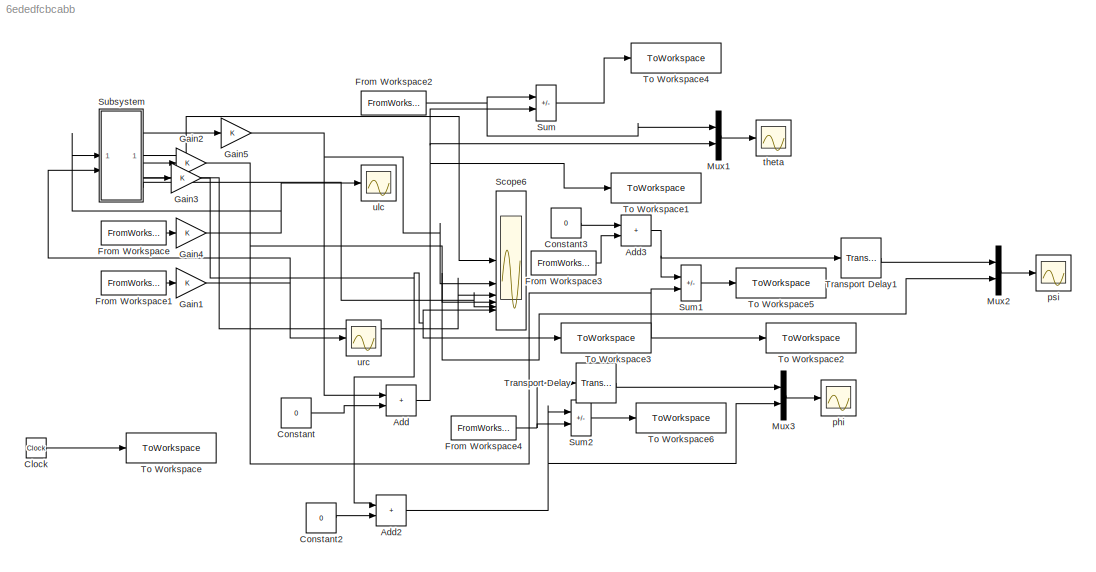
MODEL slx_6ededfcbcabb
KIND model
CONFIG AbsTol = auto
CONFIG EnableMultiTasking = off
CONFIG FixedStep = auto
CONFIG MaxStep = auto
CONFIG MinStep = auto
CONFIG RelTol = 1e-3
CONFIG SampleTimeConstraint = Unconstrained
CONFIG SolverName = VariableStepAuto
CONFIG StartTime = 0.0
CONFIG StopTime = 60
BLOCK [Sum] Add
  IconShape = rectangular
BLOCK [Sum] Add2
  IconShape = rectangular
BLOCK [Sum] Add3
  IconShape = rectangular
BLOCK [Clock] Clock
BLOCK [Constant] Constant
  Value = 0
BLOCK [Constant] Constant2
  Value = 0
BLOCK [Constant] Constant3
  Value = 0
BLOCK [FromWorkspace] From Workspace
  SampleTime = Ts
  VariableName = [t_exp urc]
BLOCK [FromWorkspace] From Workspace1
  SampleTime = Ts
  VariableName = [t_exp ulc]
BLOCK [FromWorkspace] From Workspace2
  SampleTime = Ts
  VariableName = [t_exp theta]
BLOCK [FromWorkspace] From Workspace3
  SampleTime = Ts
  VariableName = [t_exp psi]
BLOCK [FromWorkspace] From Workspace4
  SampleTime = Ts
  VariableName = [t_exp phi]
BLOCK [Gain] Gain1
BLOCK [Gain] Gain2
BLOCK [Gain] Gain3
BLOCK [Gain] Gain4
BLOCK [Gain] Gain5
BLOCK [Mux] Mux1
  DisplayOption = bar
  Inputs = 2
BLOCK [Mux] Mux2
  DisplayOption = bar
  Inputs = 2
BLOCK [Mux] Mux3
  DisplayOption = bar
  Inputs = 2
BLOCK [Scope] Scope6
  Floating = off
  NumInputPorts = 6
  ScopeSpecificationString = Simulink.scopes.TimeScopeBlockCfg('CurrentConfiguration', extmgr.ConfigurationSet(extmgr.Configuration('Core','General UI',true),extmgr.Configuration('Core','Source UI',true),extmgr.Configuration('Sources','WiredSimulink',true,'DataLoggingVariableName','ScopeData4'),extmgr.Configuration('Visuals','Time Domain',true,'SerializedDisplays',{struct('MinYLimReal','-14.69797','MaxYLimReal','20.64372','YL...<+1512ch>
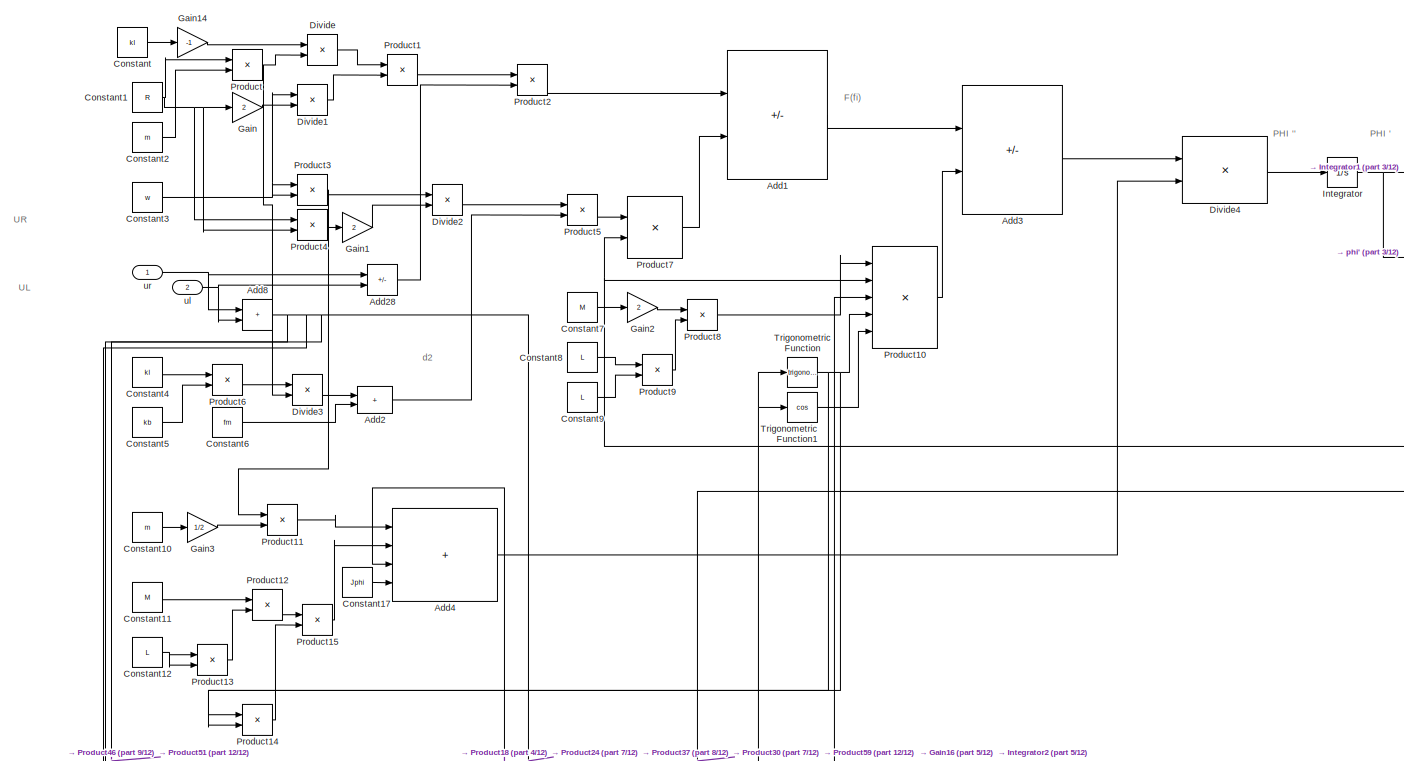
[diagram: Subsystem - part 1/12, top left region]
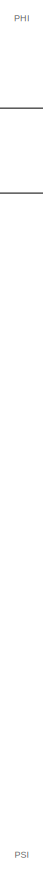
[diagram: Subsystem - part 2/12, top right region]
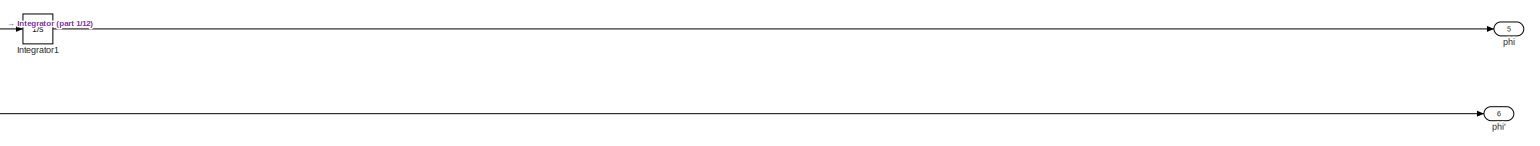
[diagram: Subsystem - part 3/12, top right region]
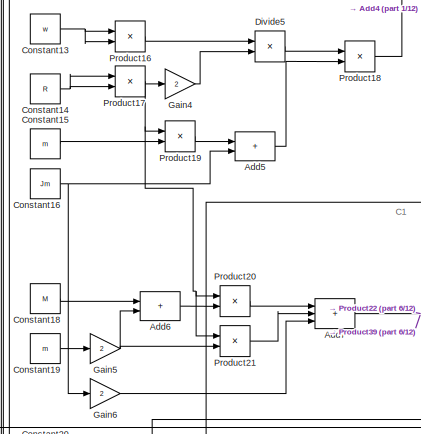
[diagram: Subsystem - part 4/12, top left region]
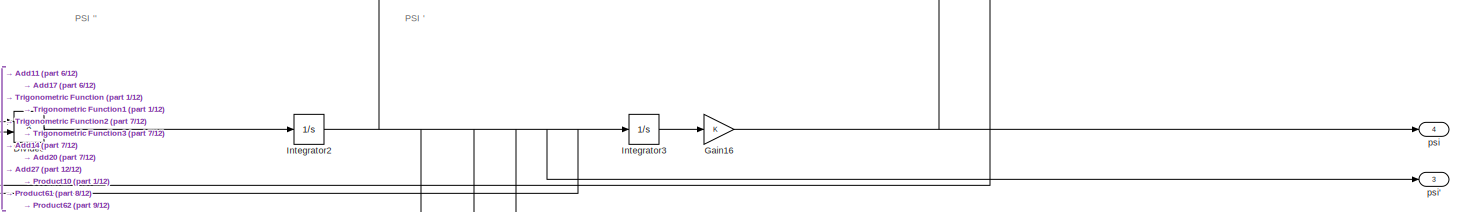
[diagram: Subsystem - part 5/12, top right region]
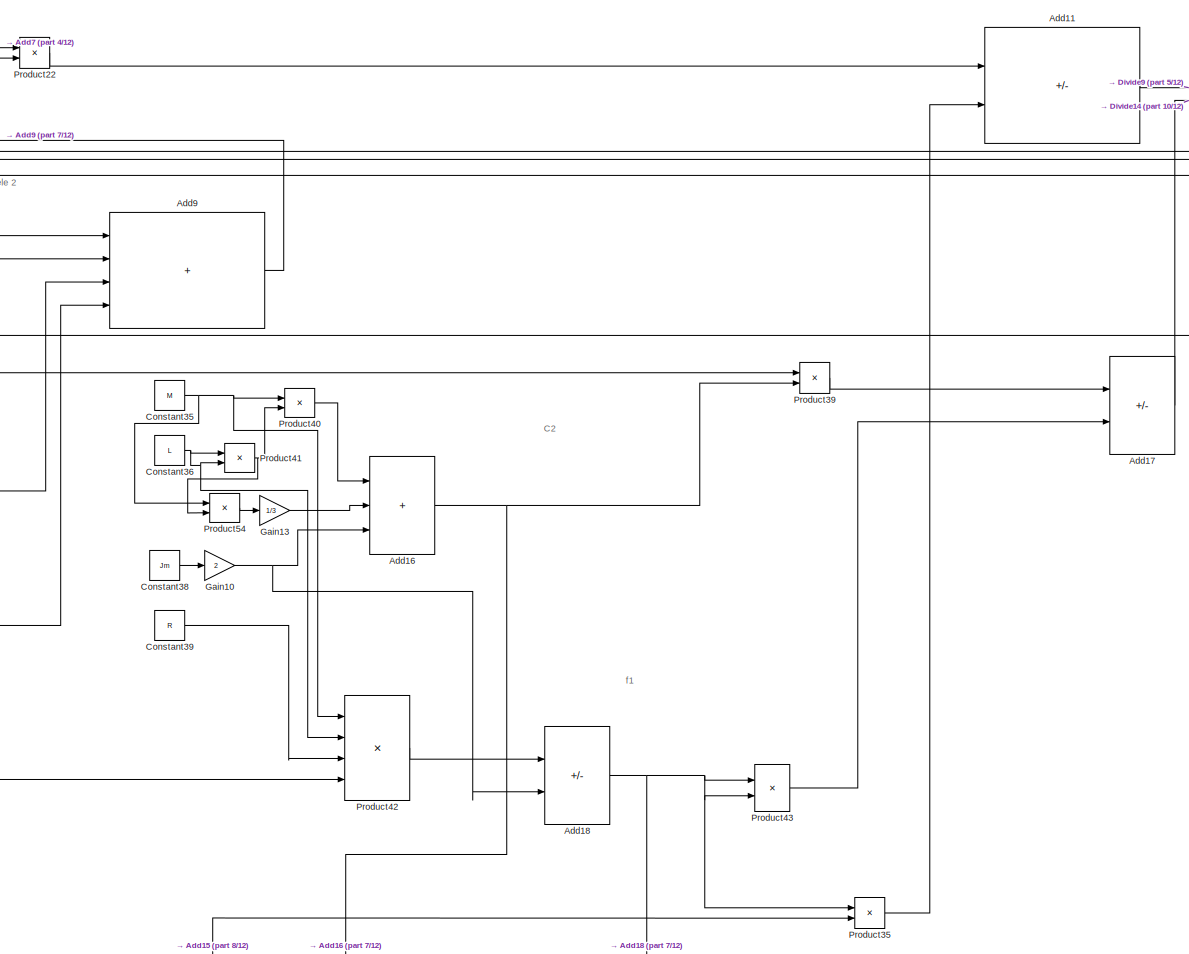
[diagram: Subsystem - part 6/12, middle left region]
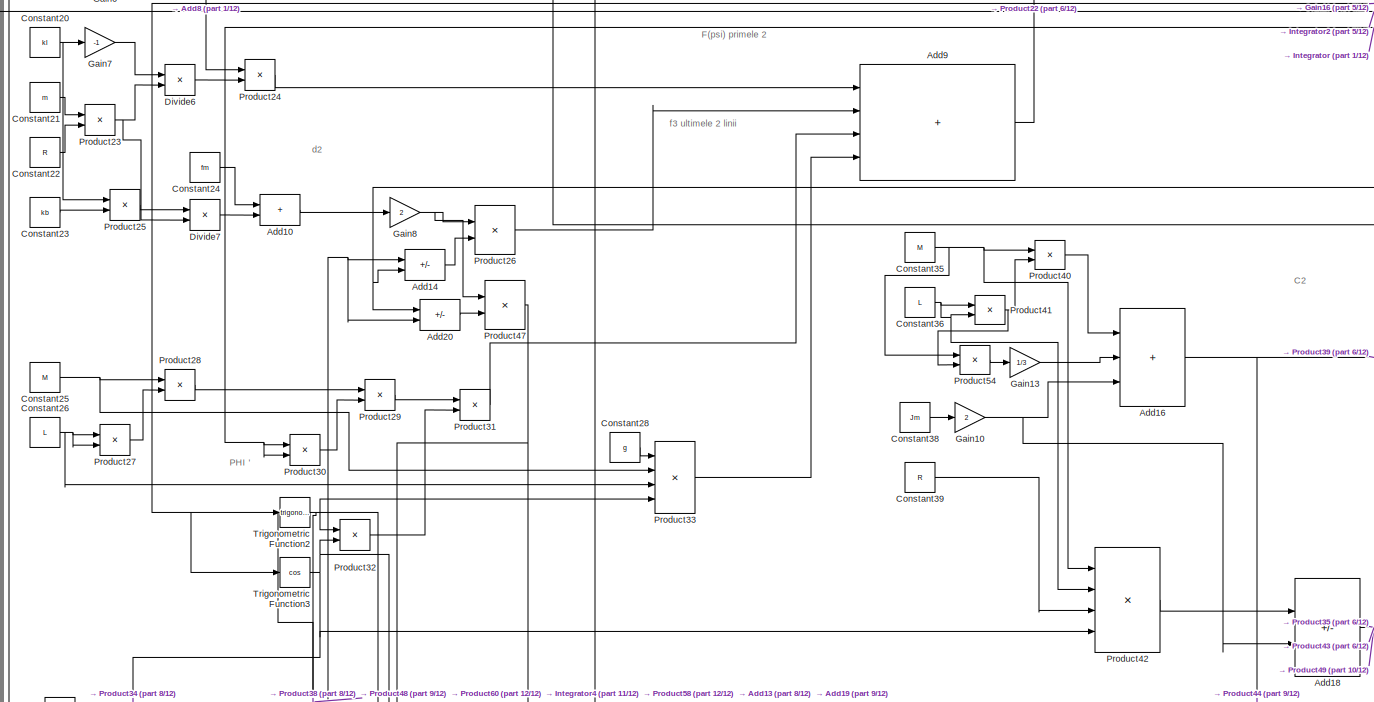
[diagram: Subsystem - part 7/12, middle left region]
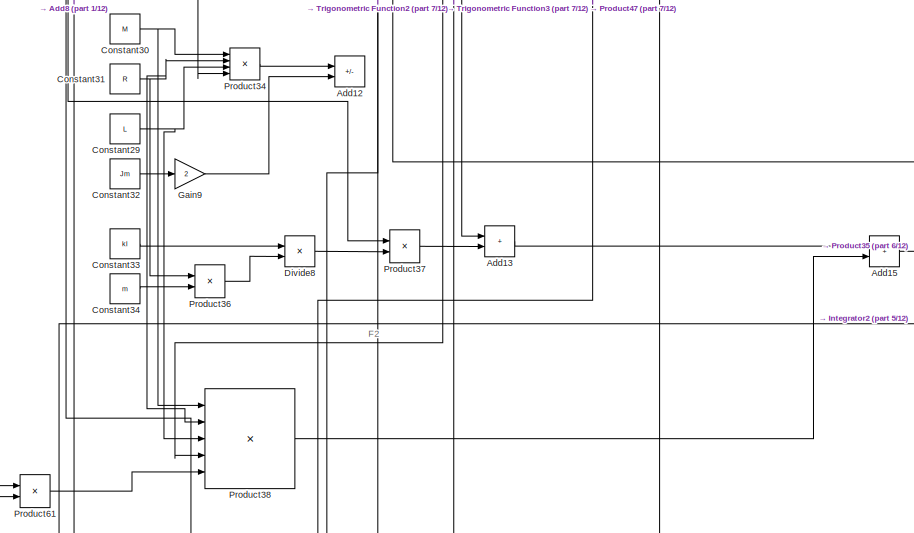
[diagram: Subsystem - part 8/12, middle left region]
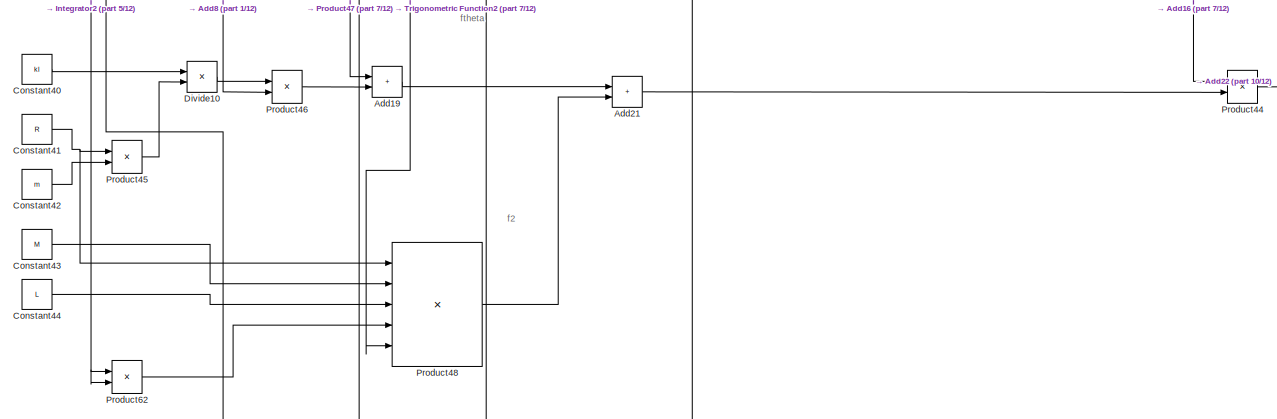
[diagram: Subsystem - part 9/12, bottom left region]
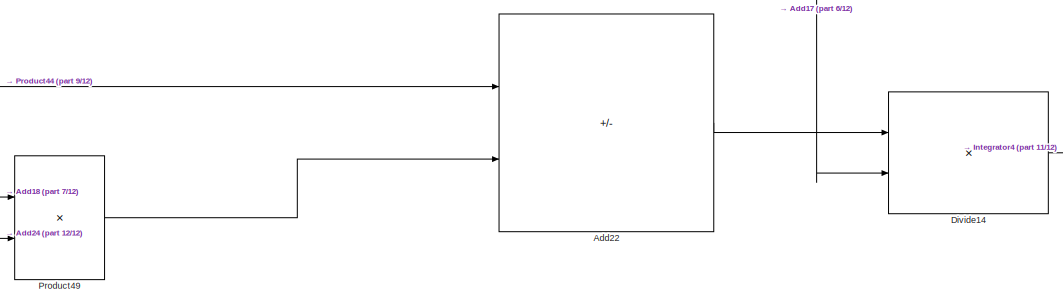
[diagram: Subsystem - part 10/12, bottom right region]
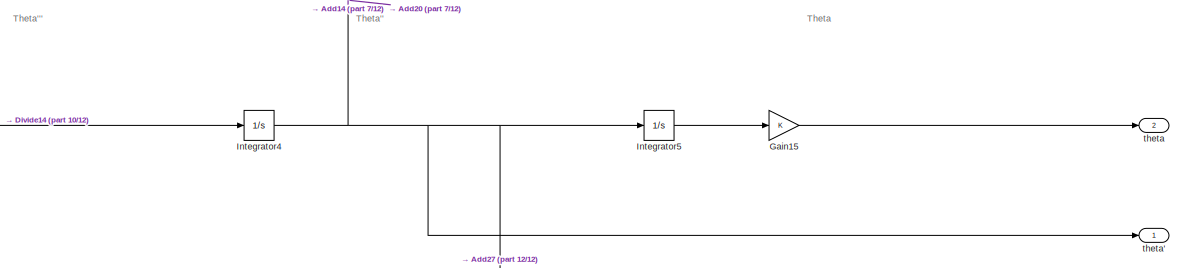
[diagram: Subsystem - part 11/12, bottom right region]
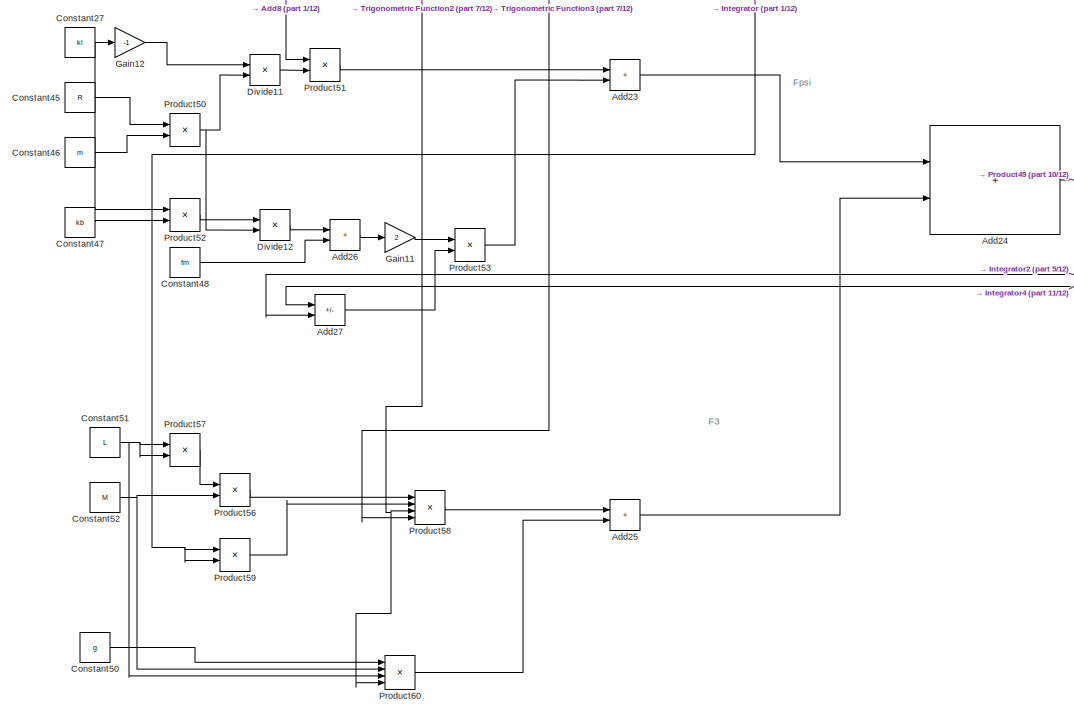
[diagram: Subsystem - part 12/12, bottom left region]
BLOCK [SubSystem] Subsystem
BLOCK [Sum] Subsystem/Add1
  IconShape = rectangular
  Inputs = +-
BLOCK [Sum] Subsystem/Add10
  IconShape = rectangular
BLOCK [Sum] Subsystem/Add11
  IconShape = rectangular
  Inputs = +-
BLOCK [Sum] Subsystem/Add12
  IconShape = rectangular
  Inputs = +-
BLOCK [Sum] Subsystem/Add13
  IconShape = rectangular
BLOCK [Sum] Subsystem/Add14
  IconShape = rectangular
  Inputs = +-
BLOCK [Sum] Subsystem/Add15
  IconShape = rectangular
BLOCK [Sum] Subsystem/Add16
  IconShape = rectangular
  Inputs = +++
BLOCK [Sum] Subsystem/Add17
  IconShape = rectangular
  Inputs = +-
BLOCK [Sum] Subsystem/Add18
  IconShape = rectangular
  Inputs = +-
BLOCK [Sum] Subsystem/Add19
  IconShape = rectangular
BLOCK [Sum] Subsystem/Add2
  IconShape = rectangular
BLOCK [Sum] Subsystem/Add20
  IconShape = rectangular
  Inputs = +-
BLOCK [Sum] Subsystem/Add21
  IconShape = rectangular
BLOCK [Sum] Subsystem/Add22
  IconShape = rectangular
  Inputs = +-
BLOCK [Sum] Subsystem/Add23
  IconShape = rectangular
BLOCK [Sum] Subsystem/Add24
  IconShape = rectangular
BLOCK [Sum] Subsystem/Add25
  IconShape = rectangular
BLOCK [Sum] Subsystem/Add26
  IconShape = rectangular
BLOCK [Sum] Subsystem/Add27
  IconShape = rectangular
  Inputs = +-
BLOCK [Sum] Subsystem/Add28
  IconShape = rectangular
  Inputs = +-
BLOCK [Sum] Subsystem/Add3
  IconShape = rectangular
  Inputs = +-
BLOCK [Sum] Subsystem/Add4
  IconShape = rectangular
  Inputs = ++++
BLOCK [Sum] Subsystem/Add5
  IconShape = rectangular
BLOCK [Sum] Subsystem/Add6
  IconShape = rectangular
BLOCK [Sum] Subsystem/Add7
  IconShape = rectangular
  Inputs = +++
BLOCK [Sum] Subsystem/Add8
  IconShape = rectangular
BLOCK [Sum] Subsystem/Add9
  IconShape = rectangular
  Inputs = ++++
BLOCK [Constant] Subsystem/Constant
  Value = kl
BLOCK [Constant] Subsystem/Constant1
  Value = R
BLOCK [Constant] Subsystem/Constant10
  Value = m
BLOCK [Constant] Subsystem/Constant11
  Value = M
BLOCK [Constant] Subsystem/Constant12
  Value = L
BLOCK [Constant] Subsystem/Constant13
  Value = w
BLOCK [Constant] Subsystem/Constant14
  Value = R
BLOCK [Constant] Subsystem/Constant15
  Value = m
BLOCK [Constant] Subsystem/Constant16
  Value = Jm
BLOCK [Constant] Subsystem/Constant17
  Value = Jphi
BLOCK [Constant] Subsystem/Constant18
  Value = M
BLOCK [Constant] Subsystem/Constant19
  Value = m
BLOCK [Constant] Subsystem/Constant2
  Value = m
BLOCK [Constant] Subsystem/Constant20
  Value = kl
BLOCK [Constant] Subsystem/Constant21
  Value = m
BLOCK [Constant] Subsystem/Constant22
  Value = R
BLOCK [Constant] Subsystem/Constant23
  Value = kb
BLOCK [Constant] Subsystem/Constant24
  Value = fm
BLOCK [Constant] Subsystem/Constant25
  Value = M
BLOCK [Constant] Subsystem/Constant26
  Value = L
BLOCK [Constant] Subsystem/Constant27
  Value = kl
BLOCK [Constant] Subsystem/Constant28
  Value = g
BLOCK [Constant] Subsystem/Constant29
  Value = L
BLOCK [Constant] Subsystem/Constant3
  Value = w
BLOCK [Constant] Subsystem/Constant30
  Value = M
BLOCK [Constant] Subsystem/Constant31
  Value = R
BLOCK [Constant] Subsystem/Constant32
  Value = Jm
BLOCK [Constant] Subsystem/Constant33
  Value = kl
BLOCK [Constant] Subsystem/Constant34
  Value = m
BLOCK [Constant] Subsystem/Constant35
  Value = M
BLOCK [Constant] Subsystem/Constant36
  Value = L
BLOCK [Constant] Subsystem/Constant38
  Value = Jm
BLOCK [Constant] Subsystem/Constant39
  Value = R
BLOCK [Constant] Subsystem/Constant4
  Value = kl
BLOCK [Constant] Subsystem/Constant40
  Value = kl
BLOCK [Constant] Subsystem/Constant41
  Value = R
BLOCK [Constant] Subsystem/Constant42
  Value = m
BLOCK [Constant] Subsystem/Constant43
  Value = M
BLOCK [Constant] Subsystem/Constant44
  Value = L
BLOCK [Constant] Subsystem/Constant45
  Value = R
BLOCK [Constant] Subsystem/Constant46
  Value = m
BLOCK [Constant] Subsystem/Constant47
  Value = kb
BLOCK [Constant] Subsystem/Constant48
  Value = fm
BLOCK [Constant] Subsystem/Constant5
  Value = kb
BLOCK [Constant] Subsystem/Constant50
  Value = g
BLOCK [Constant] Subsystem/Constant51
  Value = L
BLOCK [Constant] Subsystem/Constant52
  Value = M
BLOCK [Constant] Subsystem/Constant6
  Value = fm
BLOCK [Constant] Subsystem/Constant7
  Value = M
BLOCK [Constant] Subsystem/Constant8
  Value = L
BLOCK [Constant] Subsystem/Constant9
  Value = L
BLOCK [Product] Subsystem/Divide
  Inputs = */
BLOCK [Product] Subsystem/Divide1
  Inputs = */
BLOCK [Product] Subsystem/Divide10
  Inputs = */
BLOCK [Product] Subsystem/Divide11
  Inputs = */
BLOCK [Product] Subsystem/Divide12
  Inputs = */
BLOCK [Product] Subsystem/Divide14
  Inputs = */
BLOCK [Product] Subsystem/Divide2
  Inputs = */
BLOCK [Product] Subsystem/Divide3
  Inputs = */
BLOCK [Product] Subsystem/Divide4
  Inputs = */
BLOCK [Product] Subsystem/Divide5
  Inputs = */
BLOCK [Product] Subsystem/Divide6
  Inputs = */
BLOCK [Product] Subsystem/Divide7
  Inputs = */
BLOCK [Product] Subsystem/Divide8
  Inputs = */
BLOCK [Product] Subsystem/Divide9
  Inputs = */
BLOCK [Gain] Subsystem/Gain
  Gain = 2
BLOCK [Gain] Subsystem/Gain1
  Gain = 2
BLOCK [Gain] Subsystem/Gain10
  Gain = 2
BLOCK [Gain] Subsystem/Gain11
  Gain = 2
BLOCK [Gain] Subsystem/Gain12
  Gain = -1
BLOCK [Gain] Subsystem/Gain13
  Gain = 1/3
BLOCK [Gain] Subsystem/Gain14
  Gain = -1
BLOCK [Gain] Subsystem/Gain15
BLOCK [Gain] Subsystem/Gain16
BLOCK [Gain] Subsystem/Gain2
  Gain = 2
BLOCK [Gain] Subsystem/Gain3
  Gain = 1/2
BLOCK [Gain] Subsystem/Gain4
  Gain = 2
BLOCK [Gain] Subsystem/Gain5
  Gain = 2
BLOCK [Gain] Subsystem/Gain6
  Gain = 2
BLOCK [Gain] Subsystem/Gain7
  Gain = -1
BLOCK [Gain] Subsystem/Gain8
  Gain = 2
BLOCK [Gain] Subsystem/Gain9
  Gain = 2
BLOCK [Integrator] Subsystem/Integrator
BLOCK [Integrator] Subsystem/Integrator1
BLOCK [Integrator] Subsystem/Integrator2
BLOCK [Integrator] Subsystem/Integrator3
BLOCK [Integrator] Subsystem/Integrator4
BLOCK [Integrator] Subsystem/Integrator5
BLOCK [Product] Subsystem/Product
BLOCK [Product] Subsystem/Product1
BLOCK [Product] Subsystem/Product10
  Inputs = 5
BLOCK [Product] Subsystem/Product11
BLOCK [Product] Subsystem/Product12
BLOCK [Product] Subsystem/Product13
BLOCK [Product] Subsystem/Product14
BLOCK [Product] Subsystem/Product15
BLOCK [Product] Subsystem/Product16
BLOCK [Product] Subsystem/Product17
BLOCK [Product] Subsystem/Product18
BLOCK [Product] Subsystem/Product19
BLOCK [Product] Subsystem/Product2
BLOCK [Product] Subsystem/Product20
BLOCK [Product] Subsystem/Product21
BLOCK [Product] Subsystem/Product22
BLOCK [Product] Subsystem/Product23
BLOCK [Product] Subsystem/Product24
BLOCK [Product] Subsystem/Product25
BLOCK [Product] Subsystem/Product26
BLOCK [Product] Subsystem/Product27
BLOCK [Product] Subsystem/Product28
BLOCK [Product] Subsystem/Product29
BLOCK [Product] Subsystem/Product3
BLOCK [Product] Subsystem/Product30
BLOCK [Product] Subsystem/Product31
BLOCK [Product] Subsystem/Product32
BLOCK [Product] Subsystem/Product33
  Inputs = 4
BLOCK [Product] Subsystem/Product34
  Inputs = 4
BLOCK [Product] Subsystem/Product35
BLOCK [Product] Subsystem/Product36
BLOCK [Product] Subsystem/Product37
BLOCK [Product] Subsystem/Product38
  Inputs = 5
BLOCK [Product] Subsystem/Product39
BLOCK [Product] Subsystem/Product4
BLOCK [Product] Subsystem/Product40
BLOCK [Product] Subsystem/Product41
BLOCK [Product] Subsystem/Product42
  Inputs = 4
BLOCK [Product] Subsystem/Product43
BLOCK [Product] Subsystem/Product44
BLOCK [Product] Subsystem/Product45
BLOCK [Product] Subsystem/Product46
BLOCK [Product] Subsystem/Product47
BLOCK [Product] Subsystem/Product48
  Inputs = 5
BLOCK [Product] Subsystem/Product49
BLOCK [Product] Subsystem/Product5
BLOCK [Product] Subsystem/Product50
BLOCK [Product] Subsystem/Product51
BLOCK [Product] Subsystem/Product52
BLOCK [Product] Subsystem/Product53
BLOCK [Product] Subsystem/Product54
BLOCK [Product] Subsystem/Product56
BLOCK [Product] Subsystem/Product57
BLOCK [Product] Subsystem/Product58
  Inputs = 4
BLOCK [Product] Subsystem/Product59
BLOCK [Product] Subsystem/Product6
BLOCK [Product] Subsystem/Product60
  Inputs = 4
BLOCK [Product] Subsystem/Product61
BLOCK [Product] Subsystem/Product62
BLOCK [Product] Subsystem/Product7
BLOCK [Product] Subsystem/Product8
BLOCK [Product] Subsystem/Product9
BLOCK [Trigonometry] Subsystem/Trigonometric Function
BLOCK [Trigonometry] Subsystem/Trigonometric Function1
  Operator = cos
BLOCK [Trigonometry] Subsystem/Trigonometric Function2
BLOCK [Trigonometry] Subsystem/Trigonometric Function3
  Operator = cos
BLOCK [Outport] Subsystem/phi
  Port = 5
  VectorParamsAs1DForOutWhenUnconnected = off
BLOCK [Outport] Subsystem/phi'
  Port = 6
  VectorParamsAs1DForOutWhenUnconnected = off
BLOCK [Outport] Subsystem/psi
  Port = 4
  VectorParamsAs1DForOutWhenUnconnected = off
BLOCK [Outport] Subsystem/psi'
  Port = 3
  VectorParamsAs1DForOutWhenUnconnected = off
BLOCK [Outport] Subsystem/theta
  Port = 2
  VectorParamsAs1DForOutWhenUnconnected = off
BLOCK [Outport] Subsystem/theta'
  VectorParamsAs1DForOutWhenUnconnected = off
BLOCK [Inport] Subsystem/ul
  Port = 2
BLOCK [Inport] Subsystem/ur
BLOCK [Sum] Sum
  IconShape = rectangular
  Inputs = |+-
BLOCK [Sum] Sum1
  IconShape = rectangular
  Inputs = |+-
BLOCK [Sum] Sum2
  IconShape = rectangular
  Inputs = -+
BLOCK [ToWorkspace] To Workspace
  FixptAsFi = on
  MaxDataPoints = inf
  SampleTime = Ts
  VariableName = t
BLOCK [ToWorkspace] To Workspace1
  FixptAsFi = on
  MaxDataPoints = inf
  SampleTime = Ts
  VariableName = theta_sim
BLOCK [ToWorkspace] To Workspace2
  FixptAsFi = on
  MaxDataPoints = inf
  SampleTime = Ts
  VariableName = psi_sim
BLOCK [ToWorkspace] To Workspace3
  FixptAsFi = on
  MaxDataPoints = inf
  SampleTime = Ts
  VariableName = phi_sim
BLOCK [ToWorkspace] To Workspace4
  FixptAsFi = on
  MaxDataPoints = inf
  SampleTime = Ts
  VariableName = e_theta_sim
BLOCK [ToWorkspace] To Workspace5
  FixptAsFi = on
  MaxDataPoints = inf
  SampleTime = Ts
  VariableName = e_psi_sim
BLOCK [ToWorkspace] To Workspace6
  FixptAsFi = on
  MaxDataPoints = inf
  SampleTime = Ts
  VariableName = e_phi_sim
BLOCK [TransportDelay] Transport Delay
  DelayTime = 2.6
BLOCK [TransportDelay] Transport Delay1
  DelayTime = 1.2
BLOCK [Scope] phi
  Floating = off
  NumInputPorts = 1
  ScopeSpecificationString = Simulink.scopes.TimeScopeBlockCfg('CurrentConfiguration', extmgr.ConfigurationSet(extmgr.Configuration('Core','General UI',true),extmgr.Configuration('Core','Source UI',true),extmgr.Configuration('Sources','WiredSimulink',true,'DataLoggingVariableName','ScopeData3','SampleTime','Ts'),extmgr.Configuration('Visuals','Time Domain',true,'SerializedDisplays',{struct('MinYLimReal','-0.01823','MaxYLimRea...<+1487ch>
BLOCK [Scope] psi
  Floating = off
  NumInputPorts = 1
  ScopeSpecificationString = Simulink.scopes.TimeScopeBlockCfg('CurrentConfiguration', extmgr.ConfigurationSet(extmgr.Configuration('Core','General UI',true),extmgr.Configuration('Core','Source UI',true),extmgr.Configuration('Sources','WiredSimulink',true,'DataLoggingVariableName','ScopeData2','SampleTime','Ts'),extmgr.Configuration('Visuals','Time Domain',true,'SerializedDisplays',{struct('MinYLimReal','-0.63752','MaxYLimRea...<+1498ch>
BLOCK [Scope] theta
  Floating = off
  NumInputPorts = 1
  ScopeSpecificationString = Simulink.scopes.TimeScopeBlockCfg('CurrentConfiguration', extmgr.ConfigurationSet(extmgr.Configuration('Core','General UI',true),extmgr.Configuration('Core','Source UI',true),extmgr.Configuration('Sources','WiredSimulink',true,'DataLoggingVariableName','ScopeData1','SampleTime','Ts'),extmgr.Configuration('Visuals','Time Domain',true,'SerializedDisplays',{struct('MinYLimReal','-2.68301','MaxYLimRea...<+1496ch>
BLOCK [Scope] ulc
  Floating = off
  NumInputPorts = 1
  ScopeSpecificationString = Simulink.scopes.TimeScopeBlockCfg('CurrentConfiguration', extmgr.ConfigurationSet(extmgr.Configuration('Core','General UI',true),extmgr.Configuration('Core','Source UI',true),extmgr.Configuration('Sources','WiredSimulink',true,'DataLoggingVariableName','ScopeData4','SampleTime','Ts'),extmgr.Configuration('Visuals','Time Domain',true,'SerializedDisplays',{struct('MinYLimReal','4.56074','MaxYLimReal...<+1458ch>
BLOCK [Scope] urc
  Floating = off
  NumInputPorts = 1
  ScopeSpecificationString = Simulink.scopes.TimeScopeBlockCfg('CurrentConfiguration', extmgr.ConfigurationSet(extmgr.Configuration('Core','General UI',true),extmgr.Configuration('Core','Source UI',true),extmgr.Configuration('Sources','WiredSimulink',true,'DataLoggingVariableName','ScopeData5','SampleTime','Ts'),extmgr.Configuration('Visuals','Time Domain',true,'SerializedDisplays',{struct('MinYLimReal','4.56074','MaxYLimReal...<+1475ch>
ANNOTATION Subsystem: PHI ' '
ANNOTATION Subsystem: PHI '
ANNOTATION Subsystem: Fpsi
ANNOTATION Subsystem: F(fi)
ANNOTATION Subsystem: f3 ultimele 2 linii
ANNOTATION Subsystem: F(psi) primele 2
ANNOTATION Subsystem: d2
ANNOTATION Subsystem: C2
ANNOTATION Subsystem: UL
ANNOTATION Subsystem: UR
ANNOTATION Subsystem: f2
ANNOTATION Subsystem: ftheta
ANNOTATION Subsystem: C1
ANNOTATION Subsystem: F3
ANNOTATION Subsystem: PHI
ANNOTATION Subsystem: PSI ''
ANNOTATION Subsystem: PSI '
ANNOTATION Subsystem: PSI
ANNOTATION Subsystem: Theta'' '
ANNOTATION Subsystem: Theta' '
ANNOTATION Subsystem: Theta
ANNOTATION Subsystem: f1
ANNOTATION Subsystem: F2
NET Add2:1 -> Mux3:2, Sum2:1
NET Add3:1 -> Sum1:1, Transport Delay1:1
NET Add:1 -> Mux1:2, Sum:2, To Workspace1:1
LINE Clock:1 -> To Workspace:1
LINE Constant2:1 -> Add2:2
LINE Constant3:1 -> Add3:1
LINE Constant:1 -> Add:2
LINE From Workspace1:1 -> Gain1:1
NET From Workspace2:1 -> Mux1:1, Sum:1
LINE From Workspace3:1 -> Add3:2
NET From Workspace4:1 -> Sum2:2, Transport Delay:1
LINE From Workspace:1 -> Gain4:1
NET Gain1:1 -> Subsystem:2, urc:1
NET Gain2:1 -> Mux2:2, Scope6:4, Sum1:2, To Workspace2:1
NET Gain3:1 -> Add2:1, Scope6:6, To Workspace3:1
NET Gain4:1 -> Subsystem:1, ulc:1
NET Gain5:1 -> Add:1, Scope6:2
LINE Mux1:1 -> theta:1
LINE Mux2:1 -> psi:1
LINE Mux3:1 -> phi:1
LINE Subsystem/Add10:1 -> Subsystem/Gain8:1
LINE Subsystem/Add11:1 -> Subsystem/Divide9:1
LINE Subsystem/Add13:1 -> Subsystem/Add15:1
LINE Subsystem/Add14:1 -> Subsystem/Product26:2
LINE Subsystem/Add15:1 -> Subsystem/Product35:2
NET Subsystem/Add16:1 -> Subsystem/Product39:2, Subsystem/Product44:1
NET Subsystem/Add17:1 -> Subsystem/Divide14:2, Subsystem/Divide9:2
NET Subsystem/Add18:1 -> Subsystem/Product35:1, Subsystem/Product43:1, Subsystem/Product43:2, Subsystem/Product49:1
LINE Subsystem/Add19:1 -> Subsystem/Add21:1
LINE Subsystem/Add1:1 -> Subsystem/Add3:1
LINE Subsystem/Add20:1 -> Subsystem/Product47:2
LINE Subsystem/Add21:1 -> Subsystem/Product44:2
LINE Subsystem/Add22:1 -> Subsystem/Divide14:1
LINE Subsystem/Add23:1 -> Subsystem/Add24:1
LINE Subsystem/Add24:1 -> Subsystem/Product49:2
LINE Subsystem/Add25:1 -> Subsystem/Add24:2
LINE Subsystem/Add26:1 -> Subsystem/Gain11:1
LINE Subsystem/Add27:1 -> Subsystem/Product53:2
LINE Subsystem/Add28:1 -> Subsystem/Product2:2
LINE Subsystem/Add2:1 -> Subsystem/Product5:2
LINE Subsystem/Add3:1 -> Subsystem/Divide4:1
LINE Subsystem/Add4:1 -> Subsystem/Divide4:2
LINE Subsystem/Add5:1 -> Subsystem/Product18:2
LINE Subsystem/Add6:1 -> Subsystem/Product20:2
NET Subsystem/Add7:1 -> Subsystem/Product22:1, Subsystem/Product39:1
NET Subsystem/Add8:1 -> Subsystem/Product24:1, Subsystem/Product37:1, Subsystem/Product46:2, Subsystem/Product51:1
LINE Subsystem/Add9:1 -> Subsystem/Product22:2
LINE Subsystem/Constant10:1 -> Subsystem/Gain3:1
LINE Subsystem/Constant11:1 -> Subsystem/Product12:1
NET Subsystem/Constant12:1 -> Subsystem/Product13:1, Subsystem/Product13:2
NET Subsystem/Constant13:1 -> Subsystem/Product16:1, Subsystem/Product16:2
NET Subsystem/Constant14:1 -> Subsystem/Product17:1, Subsystem/Product17:2
LINE Subsystem/Constant15:1 -> Subsystem/Product19:2
NET Subsystem/Constant16:1 -> Subsystem/Add5:2, Subsystem/Gain6:1
LINE Subsystem/Constant17:1 -> Subsystem/Add4:4
LINE Subsystem/Constant18:1 -> Subsystem/Add6:1
LINE Subsystem/Constant19:1 -> Subsystem/Gain5:1
NET Subsystem/Constant1:1 -> Subsystem/Gain:1, Subsystem/Product4:1, Subsystem/Product4:2, Subsystem/Product:1
NET Subsystem/Constant20:1 -> Subsystem/Gain7:1, Subsystem/Product25:1
LINE Subsystem/Constant21:1 -> Subsystem/Product23:1
LINE Subsystem/Constant22:1 -> Subsystem/Product23:2
LINE Subsystem/Constant23:1 -> Subsystem/Product25:2
LINE Subsystem/Constant24:1 -> Subsystem/Add10:1
NET Subsystem/Constant25:1 -> Subsystem/Product28:1, Subsystem/Product33:2
NET Subsystem/Constant26:1 -> Subsystem/Product27:1, Subsystem/Product27:2, Subsystem/Product33:3
NET Subsystem/Constant27:1 -> Subsystem/Gain12:1, Subsystem/Product52:1
LINE Subsystem/Constant28:1 -> Subsystem/Product33:1
NET Subsystem/Constant29:1 -> Subsystem/Product34:3, Subsystem/Product38:3
LINE Subsystem/Constant2:1 -> Subsystem/Product:2
NET Subsystem/Constant30:1 -> Subsystem/Product34:1, Subsystem/Product38:1
NET Subsystem/Constant31:1 -> Subsystem/Product34:2, Subsystem/Product36:1, Subsystem/Product38:2
LINE Subsystem/Constant32:1 -> Subsystem/Gain9:1
LINE Subsystem/Constant33:1 -> Subsystem/Divide8:1
LINE Subsystem/Constant34:1 -> Subsystem/Product36:2
NET Subsystem/Constant35:1 -> Subsystem/Product40:1, Subsystem/Product42:1, Subsystem/Product54:1
NET Subsystem/Constant36:1 -> Subsystem/Product41:1, Subsystem/Product41:2, Subsystem/Product42:2
LINE Subsystem/Constant38:1 -> Subsystem/Gain10:1
LINE Subsystem/Constant39:1 -> Subsystem/Product42:3
NET Subsystem/Constant3:1 -> Subsystem/Divide1:1, Subsystem/Product3:1, Subsystem/Product3:2
LINE Subsystem/Constant40:1 -> Subsystem/Divide10:1
NET Subsystem/Constant41:1 -> Subsystem/Product45:1, Subsystem/Product48:1
LINE Subsystem/Constant42:1 -> Subsystem/Product45:2
LINE Subsystem/Constant43:1 -> Subsystem/Product48:2
LINE Subsystem/Constant44:1 -> Subsystem/Product48:3
LINE Subsystem/Constant45:1 -> Subsystem/Product50:1
LINE Subsystem/Constant46:1 -> Subsystem/Product50:2
LINE Subsystem/Constant47:1 -> Subsystem/Product52:2
LINE Subsystem/Constant48:1 -> Subsystem/Add26:2
LINE Subsystem/Constant4:1 -> Subsystem/Product6:1
LINE Subsystem/Constant50:1 -> Subsystem/Product60:1
NET Subsystem/Constant51:1 -> Subsystem/Product57:1, Subsystem/Product57:2, Subsystem/Product60:3
NET Subsystem/Constant52:1 -> Subsystem/Product56:2, Subsystem/Product60:2
LINE Subsystem/Constant5:1 -> Subsystem/Product6:2
LINE Subsystem/Constant6:1 -> Subsystem/Add2:2
LINE Subsystem/Constant7:1 -> Subsystem/Gain2:1
LINE Subsystem/Constant8:1 -> Subsystem/Product9:1
LINE Subsystem/Constant9:1 -> Subsystem/Product9:2
LINE Subsystem/Constant:1 -> Subsystem/Gain14:1
LINE Subsystem/Divide10:1 -> Subsystem/Product46:1
LINE Subsystem/Divide11:1 -> Subsystem/Product51:2
LINE Subsystem/Divide12:1 -> Subsystem/Add26:1
LINE Subsystem/Divide14:1 -> Subsystem/Integrator4:1
LINE Subsystem/Divide1:1 -> Subsystem/Product1:2
LINE Subsystem/Divide2:1 -> Subsystem/Product5:1
LINE Subsystem/Divide3:1 -> Subsystem/Add2:1
LINE Subsystem/Divide4:1 -> Subsystem/Integrator:1
LINE Subsystem/Divide5:1 -> Subsystem/Product18:1
LINE Subsystem/Divide6:1 -> Subsystem/Product24:2
LINE Subsystem/Divide7:1 -> Subsystem/Add10:2
LINE Subsystem/Divide8:1 -> Subsystem/Product37:2
LINE Subsystem/Divide9:1 -> Subsystem/Integrator2:1
LINE Subsystem/Divide:1 -> Subsystem/Product1:1
NET Subsystem/Gain10:1 -> Subsystem/Add16:3, Subsystem/Add18:2
LINE Subsystem/Gain11:1 -> Subsystem/Product53:1
LINE Subsystem/Gain12:1 -> Subsystem/Divide11:1
LINE Subsystem/Gain13:1 -> Subsystem/Add16:2
LINE Subsystem/Gain14:1 -> Subsystem/Divide:1
LINE Subsystem/Gain15:1 -> Subsystem/theta:1
NET Subsystem/Gain16:1 -> Subsystem/Trigonometric Function1:1, Subsystem/Trigonometric Function2:1, Subsystem/Trigonometric Function3:1, Subsystem/Trigonometric Function:1, Subsystem/psi:1
LINE Subsystem/Gain1:1 -> Subsystem/Divide2:2
LINE Subsystem/Gain2:1 -> Subsystem/Product8:1
LINE Subsystem/Gain3:1 -> Subsystem/Product11:2
LINE Subsystem/Gain4:1 -> Subsystem/Divide5:2
NET Subsystem/Gain5:1 -> Subsystem/Add6:2, Subsystem/Product21:2
LINE Subsystem/Gain6:1 -> Subsystem/Add7:3
LINE Subsystem/Gain7:1 -> Subsystem/Divide6:1
NET Subsystem/Gain8:1 -> Subsystem/Product26:1, Subsystem/Product47:1
LINE Subsystem/Gain9:1 -> Subsystem/Add12:2
LINE Subsystem/Gain:1 -> Subsystem/Divide1:2
LINE Subsystem/Integrator1:1 -> Subsystem/phi:1
NET Subsystem/Integrator2:1 -> Subsystem/Add14:2, Subsystem/Add20:1, Subsystem/Add27:2, Subsystem/Integrator3:1, Subsystem/Product10:3, Subsystem/Product61:1, Subsystem/Product61:2, Subsystem/Product62:1, Subsystem/Product62:2, Subsystem/psi':1
LINE Subsystem/Integrator3:1 -> Subsystem/Gain16:1
NET Subsystem/Integrator4:1 -> Subsystem/Add14:1, Subsystem/Add20:2, Subsystem/Add27:1, Subsystem/Integrator5:1, Subsystem/theta':1
LINE Subsystem/Integrator5:1 -> Subsystem/Gain15:1
NET Subsystem/Integrator:1 -> Subsystem/Integrator1:1, Subsystem/Product10:2, Subsystem/Product30:1, Subsystem/Product30:2, Subsystem/Product59:1, Subsystem/Product59:2, Subsystem/Product7:2, Subsystem/phi':1
LINE Subsystem/Product10:1 -> Subsystem/Add3:2
LINE Subsystem/Product11:1 -> Subsystem/Add4:1
LINE Subsystem/Product12:1 -> Subsystem/Product15:1
LINE Subsystem/Product13:1 -> Subsystem/Product12:2
LINE Subsystem/Product14:1 -> Subsystem/Product15:2
LINE Subsystem/Product15:1 -> Subsystem/Add4:2
LINE Subsystem/Product16:1 -> Subsystem/Divide5:1
NET Subsystem/Product17:1 -> Subsystem/Gain4:1, Subsystem/Product19:1, Subsystem/Product20:1, Subsystem/Product21:1
LINE Subsystem/Product18:1 -> Subsystem/Add4:3
LINE Subsystem/Product19:1 -> Subsystem/Add5:1
LINE Subsystem/Product1:1 -> Subsystem/Product2:1
LINE Subsystem/Product20:1 -> Subsystem/Add7:1
LINE Subsystem/Product21:1 -> Subsystem/Add7:2
LINE Subsystem/Product22:1 -> Subsystem/Add11:1
NET Subsystem/Product23:1 -> Subsystem/Divide6:2, Subsystem/Divide7:2
LINE Subsystem/Product24:1 -> Subsystem/Add9:1
LINE Subsystem/Product25:1 -> Subsystem/Divide7:1
LINE Subsystem/Product26:1 -> Subsystem/Add9:2
LINE Subsystem/Product27:1 -> Subsystem/Product28:2
LINE Subsystem/Product28:1 -> Subsystem/Product29:1
LINE Subsystem/Product29:1 -> Subsystem/Product31:1
LINE Subsystem/Product2:1 -> Subsystem/Add1:1
LINE Subsystem/Product30:1 -> Subsystem/Product29:2
LINE Subsystem/Product31:1 -> Subsystem/Add9:3
LINE Subsystem/Product32:1 -> Subsystem/Product31:2
LINE Subsystem/Product33:1 -> Subsystem/Add9:4
LINE Subsystem/Product34:1 -> Subsystem/Add12:1
LINE Subsystem/Product35:1 -> Subsystem/Add11:2
LINE Subsystem/Product36:1 -> Subsystem/Divide8:2
LINE Subsystem/Product37:1 -> Subsystem/Add13:2
LINE Subsystem/Product38:1 -> Subsystem/Add15:2
LINE Subsystem/Product39:1 -> Subsystem/Add17:1
NET Subsystem/Product3:1 -> Subsystem/Divide2:1, Subsystem/Product11:1
LINE Subsystem/Product40:1 -> Subsystem/Add16:1
NET Subsystem/Product41:1 -> Subsystem/Product40:2, Subsystem/Product54:2
LINE Subsystem/Product42:1 -> Subsystem/Add18:1
LINE Subsystem/Product43:1 -> Subsystem/Add17:2
LINE Subsystem/Product44:1 -> Subsystem/Add22:1
LINE Subsystem/Product45:1 -> Subsystem/Divide10:2
LINE Subsystem/Product46:1 -> Subsystem/Add19:2
NET Subsystem/Product47:1 -> Subsystem/Add13:1, Subsystem/Add19:1
LINE Subsystem/Product48:1 -> Subsystem/Add21:2
LINE Subsystem/Product49:1 -> Subsystem/Add22:2
LINE Subsystem/Product4:1 -> Subsystem/Gain1:1
NET Subsystem/Product50:1 -> Subsystem/Divide11:2, Subsystem/Divide12:2
LINE Subsystem/Product51:1 -> Subsystem/Add23:1
LINE Subsystem/Product52:1 -> Subsystem/Divide12:1
LINE Subsystem/Product53:1 -> Subsystem/Add23:2
LINE Subsystem/Product54:1 -> Subsystem/Gain13:1
LINE Subsystem/Product56:1 -> Subsystem/Product58:1
LINE Subsystem/Product57:1 -> Subsystem/Product56:1
LINE Subsystem/Product58:1 -> Subsystem/Add25:1
LINE Subsystem/Product59:1 -> Subsystem/Product58:2
LINE Subsystem/Product5:1 -> Subsystem/Product7:1
LINE Subsystem/Product60:1 -> Subsystem/Add25:2
LINE Subsystem/Product61:1 -> Subsystem/Product38:5
LINE Subsystem/Product62:1 -> Subsystem/Product48:4
LINE Subsystem/Product6:1 -> Subsystem/Divide3:1
LINE Subsystem/Product7:1 -> Subsystem/Add1:2
LINE Subsystem/Product8:1 -> Subsystem/Product10:1
LINE Subsystem/Product9:1 -> Subsystem/Product8:2
NET Subsystem/Product:1 -> Subsystem/Divide3:2, Subsystem/Divide:2
LINE Subsystem/Trigonometric Function1:1 -> Subsystem/Product10:5
NET Subsystem/Trigonometric Function2:1 -> Subsystem/Product32:1, Subsystem/Product33:4, Subsystem/Product38:4, Subsystem/Product48:5, Subsystem/Product58:3, Subsystem/Product60:4
NET Subsystem/Trigonometric Function3:1 -> Subsystem/Product32:2, Subsystem/Product34:4, Subsystem/Product42:4, Subsystem/Product58:4
NET Subsystem/Trigonometric Function:1 -> Subsystem/Product10:4, Subsystem/Product14:1, Subsystem/Product14:2
NET Subsystem/ul:1 -> Subsystem/Add28:2, Subsystem/Add8:2
NET Subsystem/ur:1 -> Subsystem/Add28:1, Subsystem/Add8:1
LINE Subsystem:1 -> Scope6:1
LINE Subsystem:2 -> Gain5:1
LINE Subsystem:3 -> Scope6:3
LINE Subsystem:4 -> Gain2:1
LINE Subsystem:5 -> Gain3:1
LINE Subsystem:6 -> Scope6:5
LINE Sum1:1 -> To Workspace5:1
LINE Sum2:1 -> To Workspace6:1
LINE Sum:1 -> To Workspace4:1
LINE Transport Delay1:1 -> Mux2:1
LINE Transport Delay:1 -> Mux3:1
note: NET lines group one-source signal fan-out (src -> all destinations, sorted); 1:1 wires keep LINE
